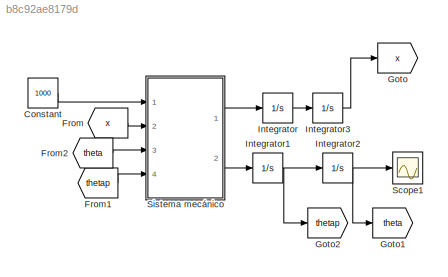
MODEL slx_b8c92ae8179d
KIND model
BLOCK [Constant] Constant
  Value = 1000
BLOCK [From] From
  GotoTag = x
BLOCK [From] From1
  GotoTag = thetap
BLOCK [From] From2
  GotoTag = theta
BLOCK [Goto] Goto
  GotoTag = x
BLOCK [Goto] Goto1
  GotoTag = theta
BLOCK [Goto] Goto2
  GotoTag = thetap
BLOCK [Integrator] Integrator
  Ports = [1, 1]
BLOCK [Integrator] Integrator1
  Ports = [1, 1]
BLOCK [Integrator] Integrator2
  Ports = [1, 1]
BLOCK [Integrator] Integrator3
  Ports = [1, 1]
BLOCK [Scope] Scope1
  DataFormat = StructureWithTime
  Decimation = 1
  Floating = off
  Grid = on
  LimitDataPoints = off
  MaxDataPoints = 5000
  NumInputPorts = 1
  Ports = [1]
  SampleInput = off
  SampleTime = -1
  SaveName = ScopeData1
  SaveToWorkspace = off
  ShowLegends = off
  TickLabels = OneTimeTick
  TimeRange = auto
  YMax = 1.11739
  YMin = -0.12415
  ZoomMode = on
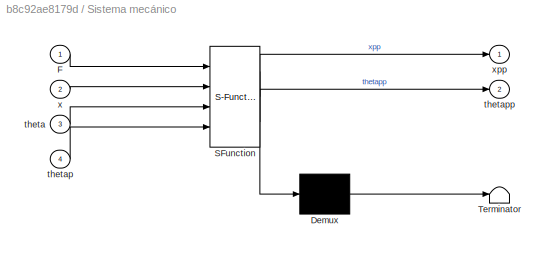
BLOCK [SubSystem] Sistema mecánico
  ErrorFcn = Stateflow.Translate.translate
  FunctionWithSeparateData = off
  MaskHideContents = off
  MinAlgLoopOccurrences = off
  Opaque = off
  PermitHierarchicalResolution = ParametersOnly
  Ports = [4, 2]
  PropExecContextOutsideSubsystem = off
  RTWSystemCode = Auto
  RequestExecContextInheritance = off
  SFBlockType = MATLAB Function
  TreatAsAtomicUnit = on
BLOCK [Demux] Sistema mecánico/ Demux 
  Outputs = 1
  Ports = [1, 1]
BLOCK [S-Function] Sistema mecánico/ SFunction 
  EnableBusSupport = on
  FunctionName = sf_sfun
  PortCounts = [4 3]
  Ports = [4, 3]
  SFunctionDeploymentMode = off
  Tag = Stateflow S-Function sistema_mecanico_lagrange_ 2
BLOCK [Terminator] Sistema mecánico/ Terminator 
BLOCK [Inport] Sistema mecánico/F
  IconDisplay = Port number
BLOCK [Inport] Sistema mecánico/theta
  IconDisplay = Port number
  Port = 3
BLOCK [Inport] Sistema mecánico/thetap
  IconDisplay = Port number
  Port = 4
BLOCK [Outport] Sistema mecánico/thetapp
  IconDisplay = Port number
  Port = 2
BLOCK [Inport] Sistema mecánico/x
  IconDisplay = Port number
  Port = 2
BLOCK [Outport] Sistema mecánico/xpp
  IconDisplay = Port number
LINE Constant:1 -> Sistema mecánico:1
LINE From1:1 -> Sistema mecánico:4
LINE From2:1 -> Sistema mecánico:3
LINE From:1 -> Sistema mecánico:2
NET Integrator1:1 -> Goto2:1, Integrator2:1
NET Integrator2:1 -> Goto1:1, Scope1:1
LINE Integrator3:1 -> Goto:1
LINE Integrator:1 -> Integrator3:1
LINE Sistema mecánico:1 -> Integrator:1
LINE Sistema mecánico:2 -> Integrator1:1
note: NET lines group one-source signal fan-out (src -> all destinations, sorted); 1:1 wires keep LINE
